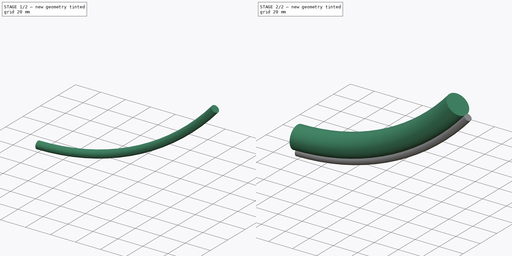
[diagram: build sequence overview — one tinted view per stage of 2, left to right]
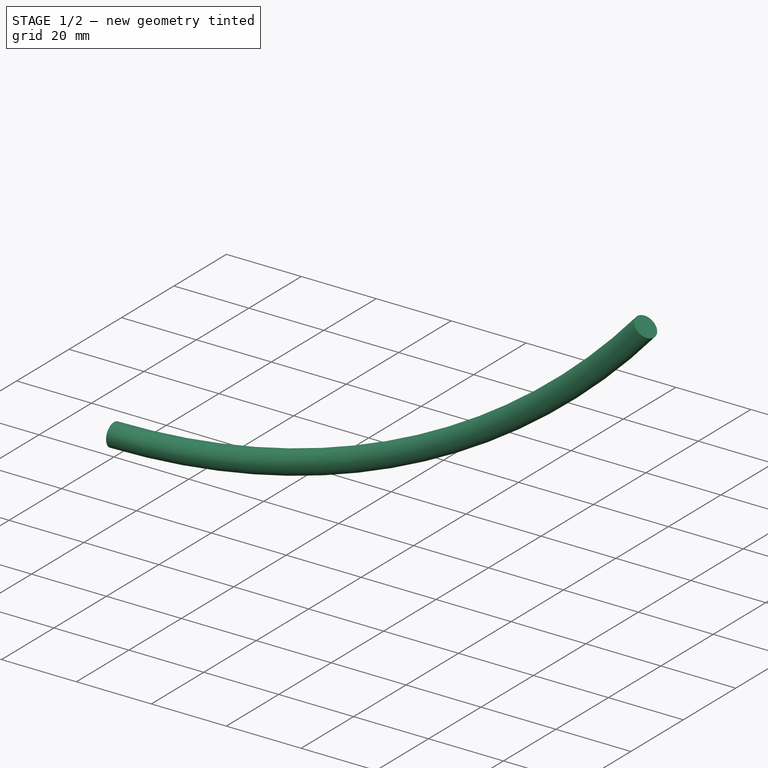
[diagram: stage 1 of 2 — iso view after this stage's code; geometry added in this stage tinted green]
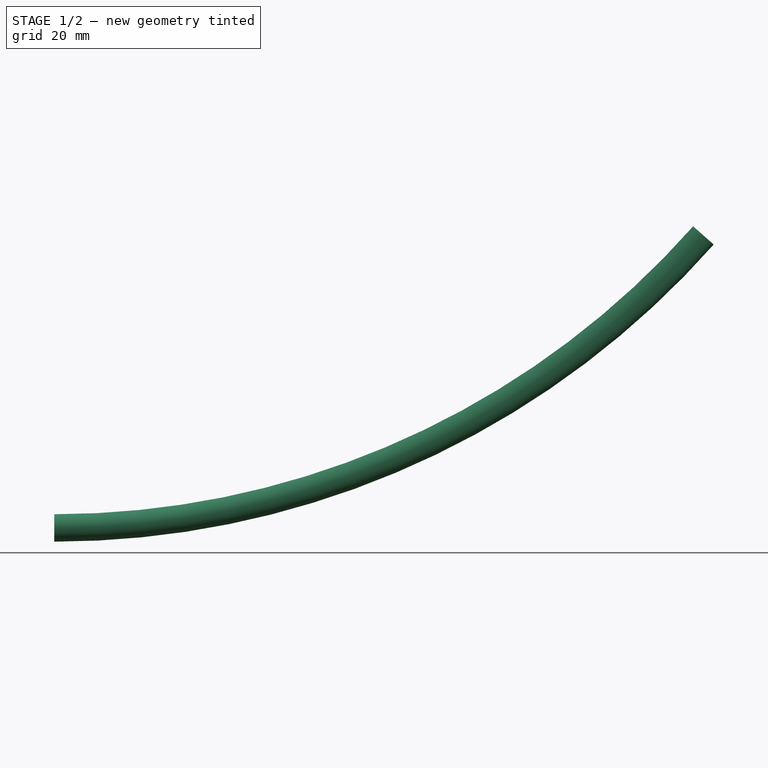
[diagram: stage 1 of 2 — front view after this stage's code; geometry added in this stage tinted green]
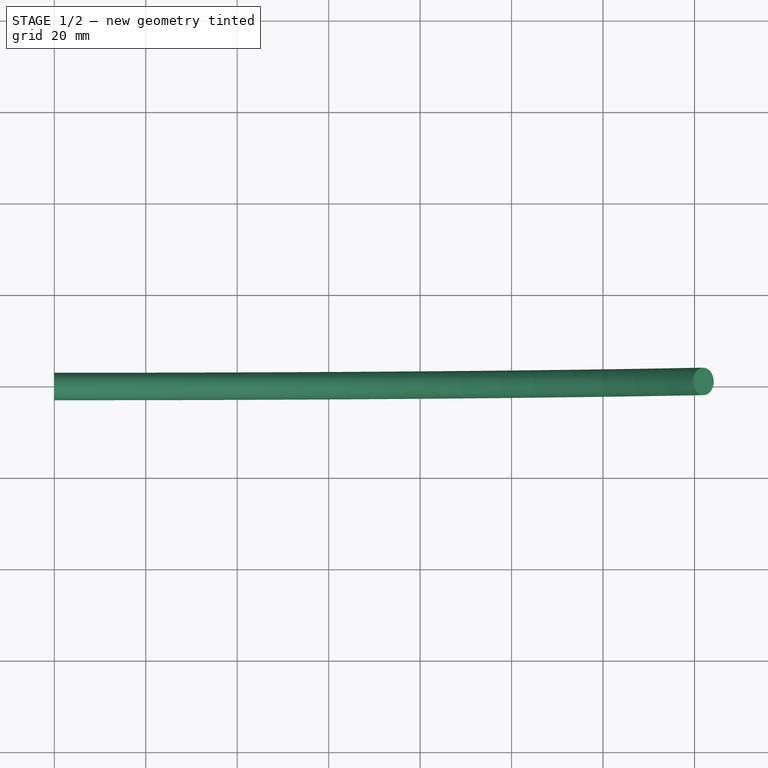
[diagram: stage 1 of 2 — top view after this stage's code; geometry added in this stage tinted green]
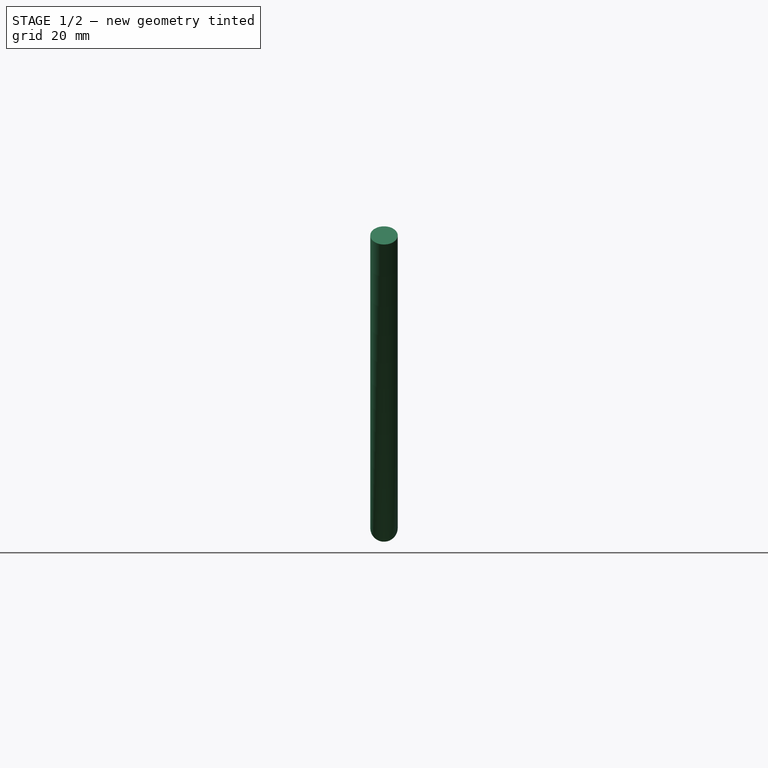
[diagram: stage 1 of 2 — right view after this stage's code; geometry added in this stage tinted green]
FCSTD DOCUMENT  (FreeCAD 0.14R3691 (Git))
Label: MotorHolderMold_1
License: CC-BY 3.0
LicenseURL: http://creativecommons.org/licenses/by/3.0/
objects: Sketcher::SketchObject×4, Part::Sweep×2
note: 6 computed .brp shape members not serialized (recipe doc carries the construction recipe); baked Part::Feature solids carry a one-line shape summary decoded from their .brp

FEATURE [Part::Sweep] Sweep001  label="WireSweep"
  Frenet = false
  Sections = -> [Sketch002]
  Solid = true
  Spine = -> Sketch [Edge1]
  Transition = 1
FEATURE [Sketcher::SketchObject] Sketch003  label="Curve001"
  Placement = pos=(0,0,0) rot=(1,0,0;1.5708rad)
  sketch-geometry (5):
    g0: ArcOfCircle [constr] CenterX=0 CenterY=187.481 CenterZ=0 NormalX=0 NormalY=0 NormalZ=1 Radius=187.481 StartAngle=4.71239 EndAngle=5.55922
    g1: LineSegment StartX=-0.533766 StartY=20 StartZ=0 EndX=4.46623 EndY=20.1334 EndZ=0
    g2: LineSegment StartX=4.46623 StartY=20.1334 StartZ=0 EndX=5 EndY=0.133442 EndZ=0
    g3: LineSegment StartX=5 StartY=0.133442 StartZ=0 EndX=0 EndY=0 EndZ=0
    g4: LineSegment StartX=0 StartY=0 StartZ=0 EndX=-0.533766 EndY=20 EndZ=0
  constraints (15):
    c: Coincident(g0,g-1)
    c: DistanceX(g0) = 140.458
    c: Radius(g0) = 187.481
    c: PointOnObject(g0,g-2)
    c: Coincident(g1,g2)
    c: Coincident(g2,g3)
    c: Coincident(g3,g4)
    c: Coincident(g4,g1)
    c: Perpendicular(g2,g0)
    c: Perpendicular(g1,g2)
    c: Parallel(g3,g1)
    c: Parallel(g2,g4)
    c: DistanceX(g1) = 5
    c: DistanceY(g4) = 20
    c: Coincident(g3,g-1)
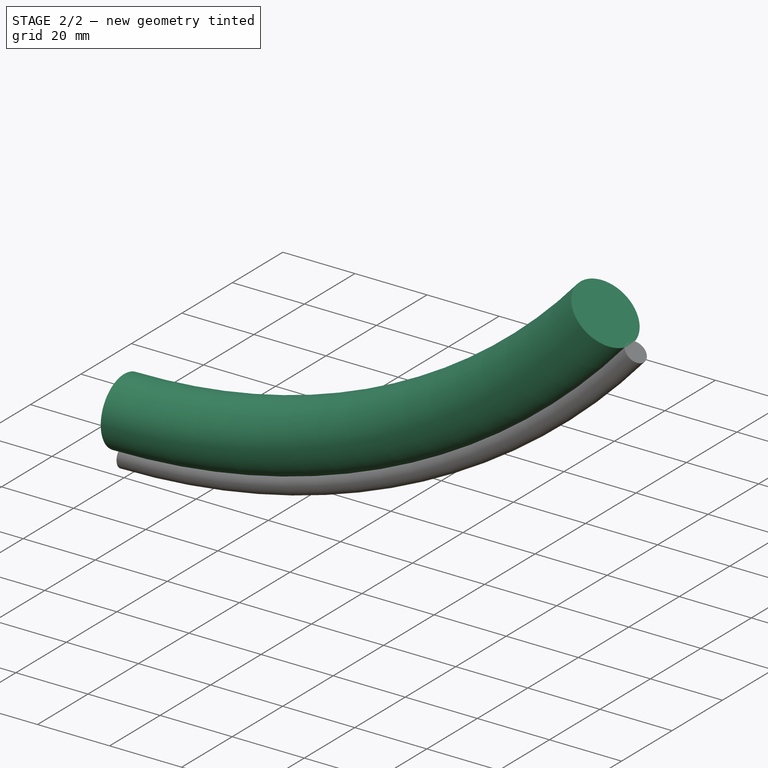
[diagram: stage 2 of 2 — iso view after this stage's code; geometry added in this stage tinted green]
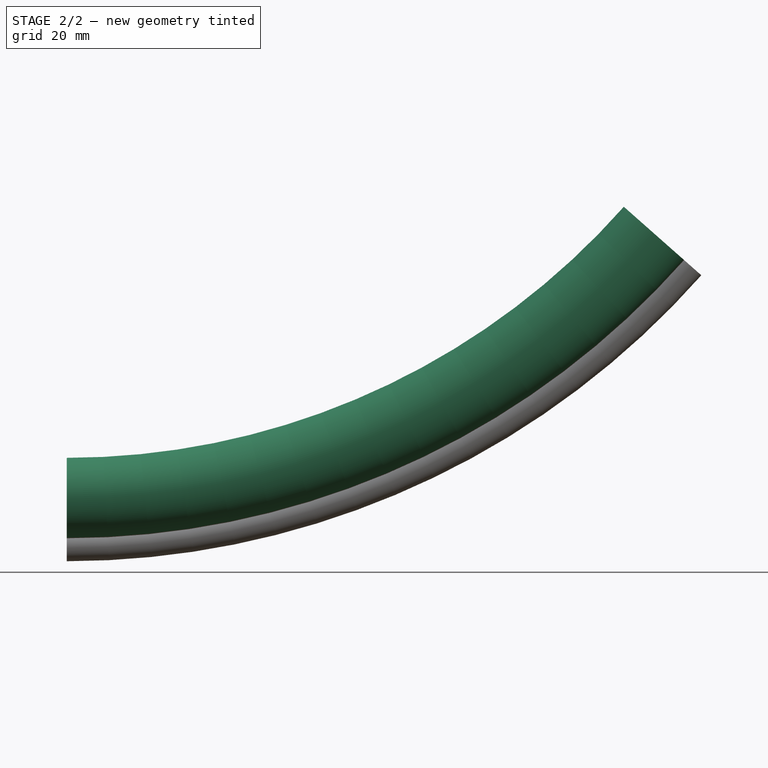
[diagram: stage 2 of 2 — front view after this stage's code; geometry added in this stage tinted green]
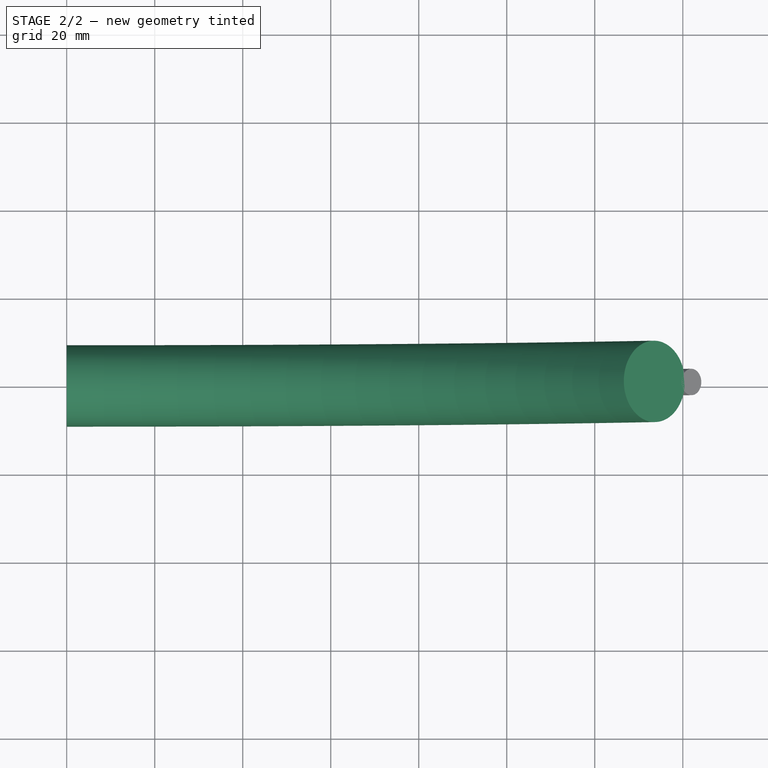
[diagram: stage 2 of 2 — top view after this stage's code; geometry added in this stage tinted green]
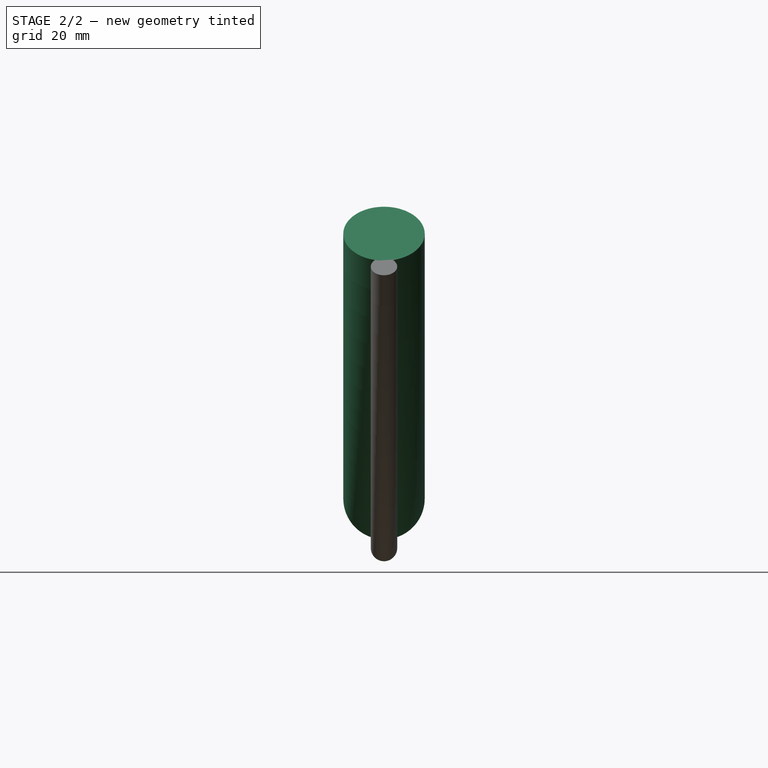
[diagram: stage 2 of 2 — right view after this stage's code; geometry added in this stage tinted green]
FEATURE [Sketcher::SketchObject] Sketch  label="Curve"
  Placement = pos=(0,0,0) rot=(1,0,0;1.5708rad)
  sketch-geometry (1):
    g0: ArcOfCircle CenterX=0 CenterY=187.481 CenterZ=0 NormalX=0 NormalY=0 NormalZ=1 Radius=187.481 StartAngle=4.71239 EndAngle=5.55922
  constraints (4):
    c: Coincident(g0,g-1)
    c: DistanceX(g0) = 140.458
    c: Radius(g0) = 187.481
    c: PointOnObject(g0,g-2)
FEATURE [Sketcher::SketchObject] Sketch001
  Placement = pos=(0,0,0) rot=(0.57735,0.57735,0.57735;2.0944rad)
  sketch-geometry (1):
    g0: Circle CenterX=0 CenterY=9.25 CenterZ=0 NormalX=0 NormalY=0 NormalZ=1 Radius=9.25
  constraints (3):
    c: Radius(g0) = 9.25
    c: PointOnObject(g0,g-2)
    c: Distance(g-1,g0) = 9.25
FEATURE [Sketcher::SketchObject] Sketch002
  Placement = pos=(0,0,0) rot=(0.57735,0.57735,0.57735;2.0944rad)
  sketch-geometry (1):
    g0: Circle CenterX=0 CenterY=-2 CenterZ=0 NormalX=0 NormalY=0 NormalZ=1 Radius=3
  constraints (3):
    c: Radius(g0) = 3
    c: PointOnObject(g0,g-2)
    c: Distance(g-1,g0) = 2
FEATURE [Part::Sweep] Sweep  label="MotorSweep"
  Frenet = false
  Sections = -> [Sketch001]
  Solid = true
  Spine = -> Sketch [Edge1]
  Transition = 1
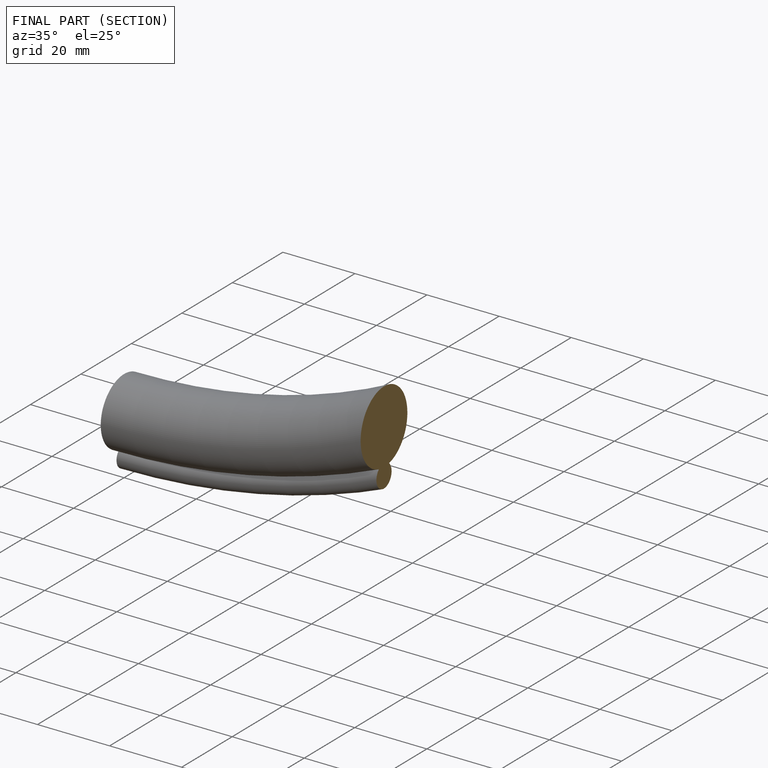
[diagram: finished part — half-section view (interior)]
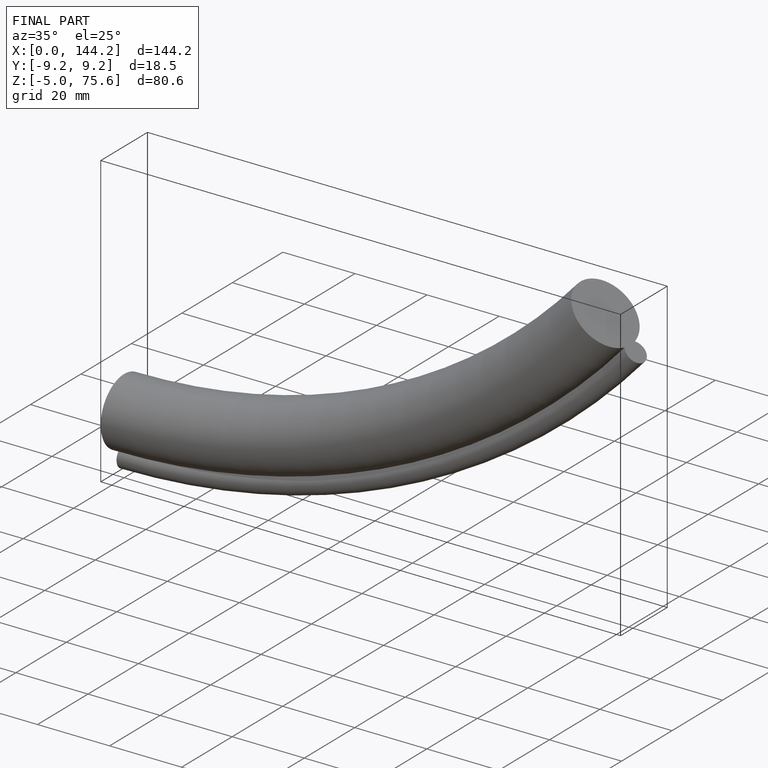
[diagram: finished part — iso view with bounding-box wireframe]
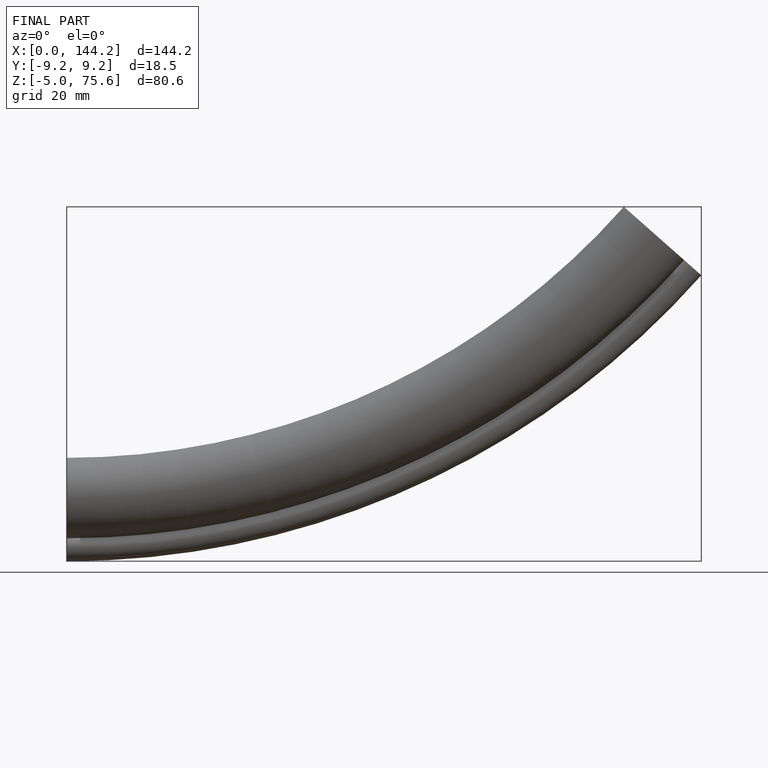
[diagram: finished part — front view with bounding-box wireframe]
